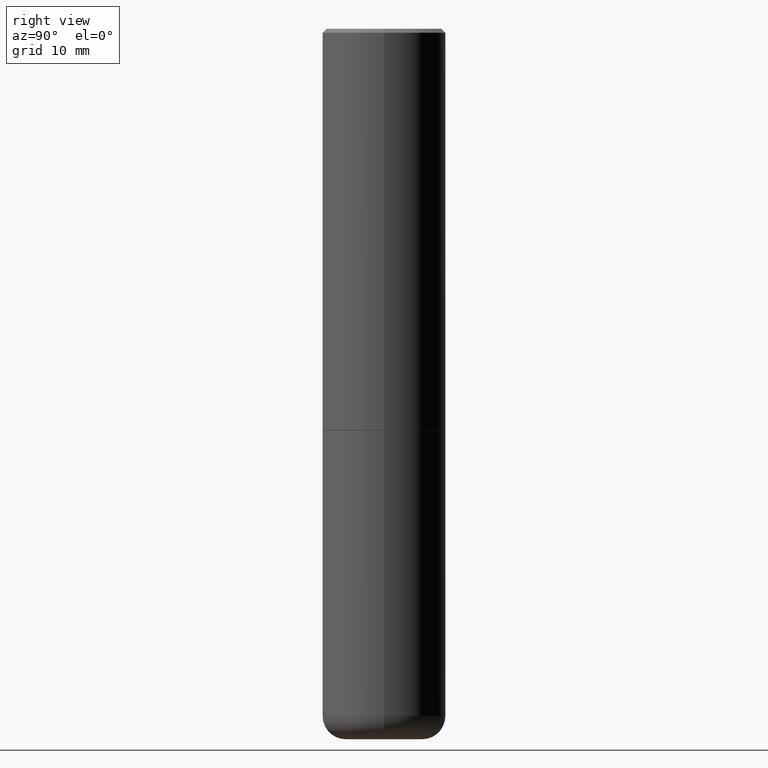
[diagram: clean part render]
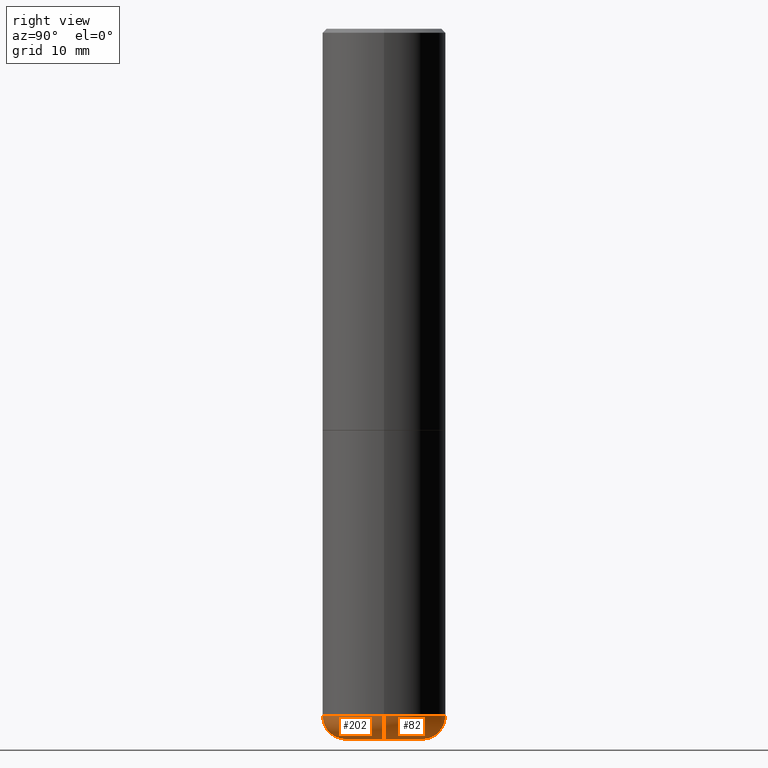
[diagram: same view with one multi-face feature highlighted, each face labeled with its STEP entity id]
A machine part, right view. The highlighted faces form ONE feature: a constant-radius fillet chain: 2 tangent blend faces with common blend radius 2.9997 mm. The faces share edges in the B-rep.
Their STEP definitions:
[1] entity #202 (Torus):
#9 = AXIS2_PLACEMENT_3D ( 'NONE', #15, #107, #397 ) ;
#14 = VERTEX_POINT ( 'NONE', #285 ) ;
#15 = CARTESIAN_POINT ( 'NONE',  ( 8.568678149992099474E-29, -1.223380146317249786E-14, -3.503899999999999793 ) ) ;
#20 = EDGE_CURVE ( 'NONE', #14, #392, #381, .T. ) ;
#37 = EDGE_CURVE ( 'NONE', #14, #123, #184, .T. ) ;
#70 = ORIENTED_EDGE ( 'NONE', *, *, #272, .F. ) ;
#71 = ORIENTED_EDGE ( 'NONE', *, *, #20, .F. ) ;
#74 = TOROIDAL_SURFACE ( 'NONE', #9, 0.1968500000000000250, 0.1181000000000000105 ) ;
#75 = ORIENTED_EDGE ( 'NONE', *, *, #37, .T. ) ;
#84 = DIRECTION ( 'NONE',  ( -2.445468806185136597E-29, 3.491481338843145583E-15, 1.000000000000000000 ) ) ;
#86 = DIRECTION ( 'NONE',  ( -2.445468806185136597E-29, 3.491481338843145583E-15, 1.000000000000000000 ) ) ;
#107 = DIRECTION ( 'NONE',  ( -2.445468806185136597E-29, 3.491481338843145583E-15, 1.000000000000000000 ) ) ;
#123 = VERTEX_POINT ( 'NONE', #236 ) ;
#128 = DIRECTION ( 'NONE',  ( 7.105427357601001859E-15, 1.000000000000000000, -3.491481338843145583E-15 ) ) ;
#137 = VERTEX_POINT ( 'NONE', #334 ) ;
#145 = DIRECTION ( 'NONE',  ( 1.000000000000000000, -6.982962677686273021E-15, 0.000000000000000000 ) ) ;
#158 = CARTESIAN_POINT ( 'NONE',  ( -0.1968500000000000250, -1.083509808782873928E-14, -3.503899999999999793 ) ) ;
#177 = CARTESIAN_POINT ( 'NONE',  ( 8.568678149992099474E-29, -1.223380146317249786E-14, -3.503899999999999793 ) ) ;
#178 = DIRECTION ( 'NONE',  ( -6.982962677686266711E-15, -1.000000000000000000, 3.491481338843145583E-15 ) ) ;
#183 = AXIS2_PLACEMENT_3D ( 'NONE', #158, #128, #338 ) ;
#184 = CIRCLE ( 'NONE', #374, 0.1968500000000000250 ) ;
#202 = ADVANCED_FACE ( 'NONE', ( #368 ), #74, .T. ) ;
#206 = DIRECTION ( 'NONE',  ( 1.000000000000000000, -6.982962677686267499E-15, 0.000000000000000000 ) ) ;
#236 = CARTESIAN_POINT ( 'NONE',  ( 0.1968500000000000250, -1.402074161239241360E-14, -3.621999999999999886 ) ) ;
#237 = AXIS2_PLACEMENT_3D ( 'NONE', #177, #86, #346 ) ;
#261 = EDGE_LOOP ( 'NONE', ( #71, #75, #308, #70 ) ) ;
#272 = EDGE_CURVE ( 'NONE', #392, #137, #363, .T. ) ;
#273 = CARTESIAN_POINT ( 'NONE',  ( 8.857488016002564476E-29, -1.264614540928987199E-14, -3.621999999999999886 ) ) ;
#280 = CARTESIAN_POINT ( 'NONE',  ( 0.1968500000000000250, -1.360839766627503947E-14, -3.503899999999999793 ) ) ;
#285 = CARTESIAN_POINT ( 'NONE',  ( -0.1968500000000000250, -1.062169457542108922E-14, -3.621999999999999886 ) ) ;
#308 = ORIENTED_EDGE ( 'NONE', *, *, #315, .T. ) ;
#315 = EDGE_CURVE ( 'NONE', #123, #137, #408, .T. ) ;
#334 = CARTESIAN_POINT ( 'NONE',  ( 0.3149500000000000077, -1.443308555850978615E-14, -3.503899999999999793 ) ) ;
#338 = DIRECTION ( 'NONE',  ( -1.000000000000000000, 7.105427357601005014E-15, 0.000000000000000000 ) ) ;
#346 = DIRECTION ( 'NONE',  ( 1.000000000000000000, -6.982962677686263555E-15, 0.000000000000000000 ) ) ;
#350 = CARTESIAN_POINT ( 'NONE',  ( -0.3149500000000000077, -9.995947116896063452E-15, -3.503899999999999793 ) ) ;
#363 = CIRCLE ( 'NONE', #237, 0.3149500000000000077 ) ;
#368 = FACE_OUTER_BOUND ( 'NONE', #261, .T. ) ;
#374 = AXIS2_PLACEMENT_3D ( 'NONE', #273, #84, #206 ) ;
#381 = CIRCLE ( 'NONE', #183, 0.1180999999999999966 ) ;
#392 = VERTEX_POINT ( 'NONE', #350 ) ;
#397 = DIRECTION ( 'NONE',  ( 1.000000000000000000, -6.982962677686263555E-15, 4.883557194083111780E-29 ) ) ;
#400 = AXIS2_PLACEMENT_3D ( 'NONE', #280, #178, #145 ) ;
#408 = CIRCLE ( 'NONE', #400, 0.1180999999999999966 ) ;
[2] entity #82 (Torus):
#7 = ORIENTED_EDGE ( 'NONE', *, *, #315, .F. ) ;
#8 = AXIS2_PLACEMENT_3D ( 'NONE', #204, #108, #42 ) ;
#12 = FACE_OUTER_BOUND ( 'NONE', #156, .T. ) ;
#14 = VERTEX_POINT ( 'NONE', #285 ) ;
#20 = EDGE_CURVE ( 'NONE', #14, #392, #381, .T. ) ;
#42 = DIRECTION ( 'NONE',  ( 1.000000000000000000, -6.982962677686263555E-15, 4.883557194083111780E-29 ) ) ;
#58 = CIRCLE ( 'NONE', #313, 0.1968500000000000250 ) ;
#65 = DIRECTION ( 'NONE',  ( 1.000000000000000000, -6.982962677686263555E-15, 0.000000000000000000 ) ) ;
#82 = ADVANCED_FACE ( 'NONE', ( #12 ), #281, .T. ) ;
#108 = DIRECTION ( 'NONE',  ( -2.445468806185136597E-29, 3.491481338843145583E-15, 1.000000000000000000 ) ) ;
#123 = VERTEX_POINT ( 'NONE', #236 ) ;
#128 = DIRECTION ( 'NONE',  ( 7.105427357601001859E-15, 1.000000000000000000, -3.491481338843145583E-15 ) ) ;
#137 = VERTEX_POINT ( 'NONE', #334 ) ;
#145 = DIRECTION ( 'NONE',  ( 1.000000000000000000, -6.982962677686273021E-15, 0.000000000000000000 ) ) ;
#156 = EDGE_LOOP ( 'NONE', ( #266, #192, #215, #7 ) ) ;
#158 = CARTESIAN_POINT ( 'NONE',  ( -0.1968500000000000250, -1.083509808782873928E-14, -3.503899999999999793 ) ) ;
#178 = DIRECTION ( 'NONE',  ( -6.982962677686266711E-15, -1.000000000000000000, 3.491481338843145583E-15 ) ) ;
#183 = AXIS2_PLACEMENT_3D ( 'NONE', #158, #128, #338 ) ;
#192 = ORIENTED_EDGE ( 'NONE', *, *, #20, .T. ) ;
#204 = CARTESIAN_POINT ( 'NONE',  ( 8.568678149992099474E-29, -1.223380146317249786E-14, -3.503899999999999793 ) ) ;
#215 = ORIENTED_EDGE ( 'NONE', *, *, #403, .F. ) ;
#218 = CARTESIAN_POINT ( 'NONE',  ( 8.568678149992099474E-29, -1.223380146317249786E-14, -3.503899999999999793 ) ) ;
#236 = CARTESIAN_POINT ( 'NONE',  ( 0.1968500000000000250, -1.402074161239241360E-14, -3.621999999999999886 ) ) ;
#241 = CARTESIAN_POINT ( 'NONE',  ( 8.857488016002564476E-29, -1.264614540928987199E-14, -3.621999999999999886 ) ) ;
#266 = ORIENTED_EDGE ( 'NONE', *, *, #322, .T. ) ;
#280 = CARTESIAN_POINT ( 'NONE',  ( 0.1968500000000000250, -1.360839766627503947E-14, -3.503899999999999793 ) ) ;
#281 = TOROIDAL_SURFACE ( 'NONE', #8, 0.1968500000000000250, 0.1181000000000000105 ) ;
#285 = CARTESIAN_POINT ( 'NONE',  ( -0.1968500000000000250, -1.062169457542108922E-14, -3.621999999999999886 ) ) ;
#307 = CIRCLE ( 'NONE', #394, 0.3149500000000000077 ) ;
#313 = AXIS2_PLACEMENT_3D ( 'NONE', #241, #418, #378 ) ;
#315 = EDGE_CURVE ( 'NONE', #123, #137, #408, .T. ) ;
#322 = EDGE_CURVE ( 'NONE', #123, #14, #58, .T. ) ;
#334 = CARTESIAN_POINT ( 'NONE',  ( 0.3149500000000000077, -1.443308555850978615E-14, -3.503899999999999793 ) ) ;
#338 = DIRECTION ( 'NONE',  ( -1.000000000000000000, 7.105427357601005014E-15, 0.000000000000000000 ) ) ;
#350 = CARTESIAN_POINT ( 'NONE',  ( -0.3149500000000000077, -9.995947116896063452E-15, -3.503899999999999793 ) ) ;
#359 = DIRECTION ( 'NONE',  ( -2.445468806185136597E-29, 3.491481338843145583E-15, 1.000000000000000000 ) ) ;
#378 = DIRECTION ( 'NONE',  ( 1.000000000000000000, -6.982962677686267499E-15, 0.000000000000000000 ) ) ;
#381 = CIRCLE ( 'NONE', #183, 0.1180999999999999966 ) ;
#392 = VERTEX_POINT ( 'NONE', #350 ) ;
#394 = AXIS2_PLACEMENT_3D ( 'NONE', #218, #359, #65 ) ;
#400 = AXIS2_PLACEMENT_3D ( 'NONE', #280, #178, #145 ) ;
#403 = EDGE_CURVE ( 'NONE', #137, #392, #307, .T. ) ;
#408 = CIRCLE ( 'NONE', #400, 0.1180999999999999966 ) ;
#418 = DIRECTION ( 'NONE',  ( -2.445468806185136597E-29, 3.491481338843145583E-15, 1.000000000000000000 ) ) ;